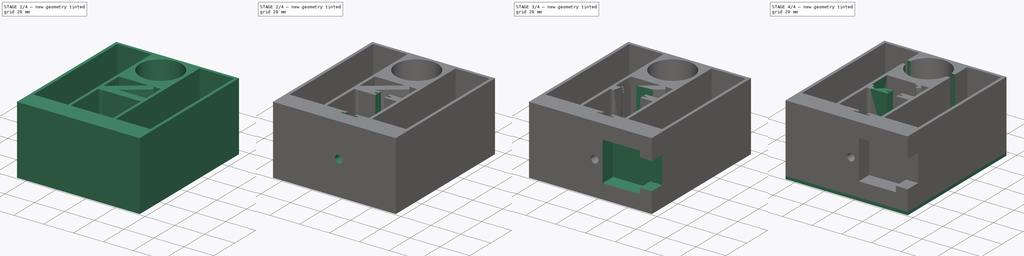
[diagram: build sequence overview — one tinted view per stage of 4, left to right]
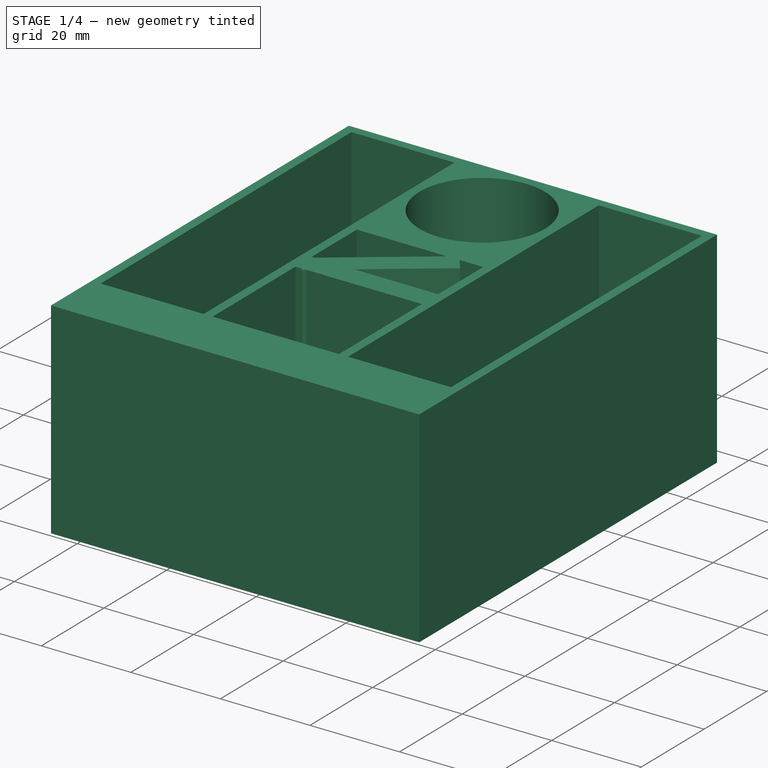
[diagram: stage 1 of 4 — iso view after this stage's code; geometry added in this stage tinted green]
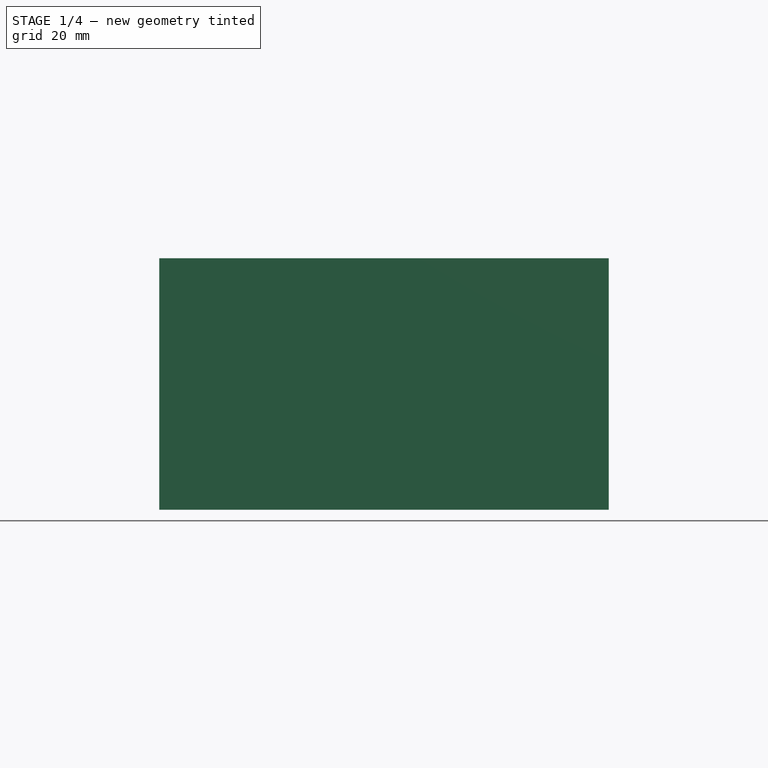
[diagram: stage 1 of 4 — front view after this stage's code; geometry added in this stage tinted green]
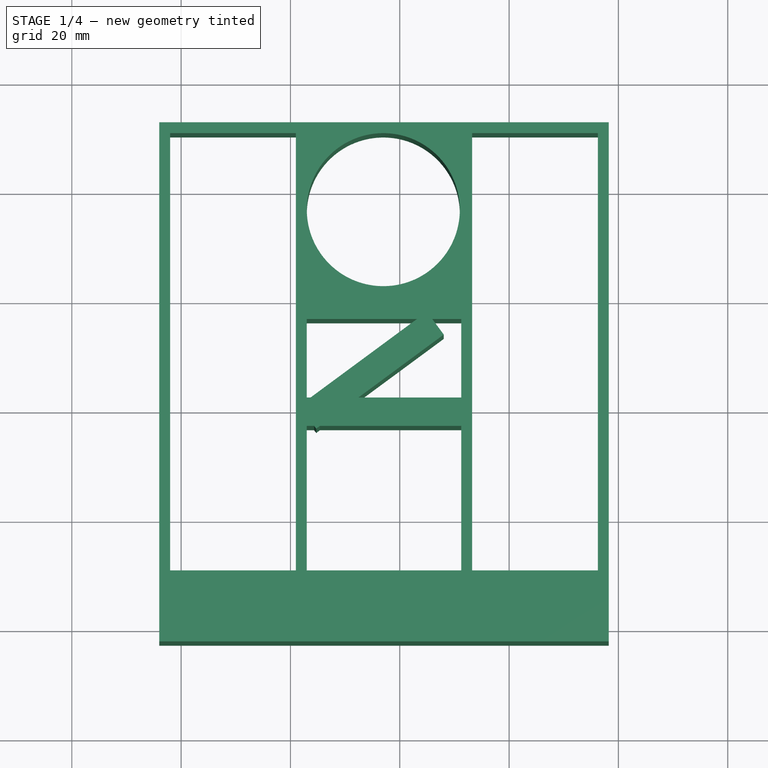
[diagram: stage 1 of 4 — top view after this stage's code; geometry added in this stage tinted green]
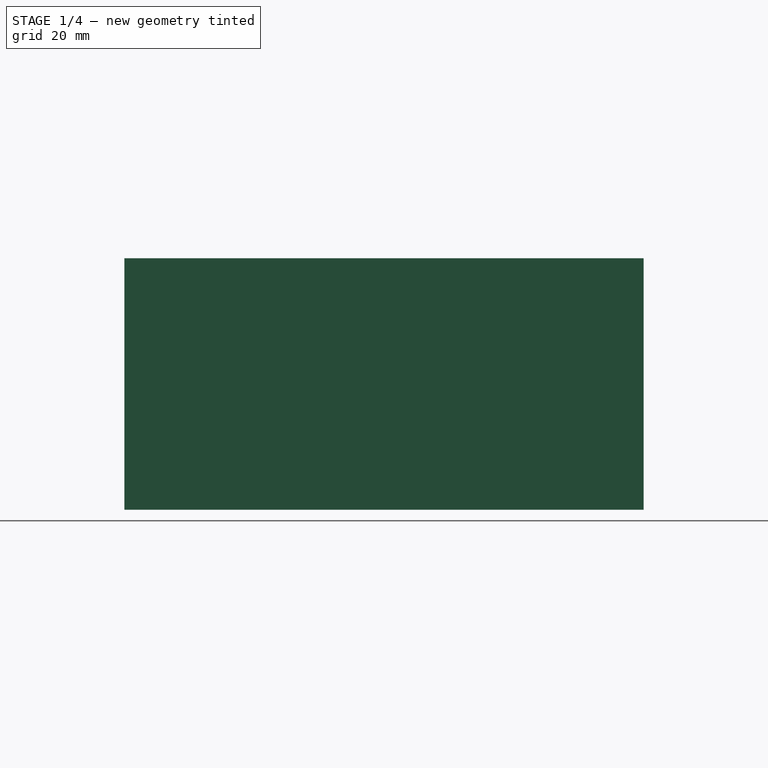
[diagram: stage 1 of 4 — right view after this stage's code; geometry added in this stage tinted green]
FCSTD DOCUMENT  (FreeCAD 0.20R29177 +233 (Git))
Label: Sensor 1
License: All rights reserved
LicenseURL: http://en.wikipedia.org/wiki/All_rights_reserved
objects: Sketcher::SketchObject×10, PartDesign::Pocket×7, PartDesign::Pad×3, Spreadsheet::Sheet×1, PartDesign::Body×1
note: 31 computed .brp shape members not serialized (recipe doc carries the construction recipe); baked Part::Feature solids carry a one-line shape summary decoded from their .brp

FEATURE [Sketcher::SketchObject] Sketch
  FullyConstrained = true
  MapMode = 5
  Support = -> [XY_Plane]
  expr: Constraints[12] = <<Sensor>>.G6
  expr: Constraints[13] = <<Sensor>>.G7
  expr: Constraints[8] = <<Sensor>>.G3
  expr: Constraints[9] = <<Sensor>>.G4
  sketch-geometry (5):
    g0: LineSegment StartX=0 StartY=0 StartZ=0 EndX=-3.62109 EndY=4.90794 EndZ=0
    g1: LineSegment StartX=-18.3763 StartY=0.483659 StartZ=0 EndX=4.95963 EndY=17.701 EndZ=0
    g2: LineSegment StartX=4.95963 StartY=17.701 StartZ=0 EndX=8.04687 EndY=13.5166 EndZ=0
    g3: LineSegment StartX=8.04687 StartY=13.5166 StartZ=0 EndX=-15.289 EndY=-3.70071 EndZ=0
    g4: LineSegment StartX=-15.289 StartY=-3.70071 StartZ=0 EndX=-18.3763 EndY=0.483659 EndZ=0
  constraints (14):
    c: Coincident(g0,g-1)
    c: Coincident(g1,g2)
    c: Coincident(g2,g3)
    c: Coincident(g3,g4)
    c: Coincident(g4,g1)
    c: Parallel(g4,g2)
    c: Parallel(g1,g3)
    c: Perpendicular(g4,g3)
    c: Distance(g3) = 29
    c: Distance(g4) = 5.2
    c: Symmetric(g3,g2,g0)
    c: Perpendicular(g0,g3)
    c: Distance(g0) = 6.09919
    c: Angle(g-2,g0) = 0.635649
FEATURE [Spreadsheet::Sheet] Sheet1  label="Sensor"
  cells = A1=Part; B1=SP1; C1=SP2; D1=SP3; E1=SP4; F1=SP5; G1=Size (mm); H1=Shape; I1=External References; N1=Design specification; P1=unit; A2=Sensor case; B2=Sensor Holder; C2=Outer; F2=Height; G2==2 * L24; I2=Part; J2=Subpart; K2=Parameter; N2=Max wavelength; O2=800; P2=nm; F3=Base; G3==L4 + O5 * 2 + O6; I3=Camera; J3=PCB; K3=Height; L3=23.7; N3=Min wavelength; O3=350; P3=nm; F4=Thickness; G4==L5 + 2 * O5 + O6; K4=Base; L4=24.8; N4=Max colimated light angle; O4=0.1; P4=deg; F5=Angle; G5==O7 + O9 / 2; K5=Thickness; L5=1; N5=wall Thickness; O5=2; P5=mm; F6=Distance to origin; G6==L13 * 0.5 * O11 / tan(1rad * Q9 / 2); J6=Sensor casing; K6=Base; L6=8.44; N6=tolerance; O6=0.2; P6=mm; C7=inner; F7=Height; G7==L9 + L24; K7=Height; L7=8.4; N7=min angle; O7==pi / 180deg * asin(O3 / $L$19) * 180 / pi; P7=deg; Q7==pi / 180deg * asin(O3 / $L$19); F8=Base; G8==L4 + $O$6; K8=Thickness; L8=3; N8=max angle; O8==pi / 180deg * asin(O2 / $L$19) * 180 / pi; P8=deg; Q8==pi / 180deg * asin(O2 / $L$19); F9=Thickness; G9==L5 + $O$6 * 1.5; K9=Vertical center rel to bottom; L9=13.42; N9=delta min max; O9==O8 - O7; P9=deg; Q9==Q8 - Q7; F10=side; G10==L16; K10=Vertical center rel to top (socket); L10==L3 - L9; N10=fraction of margin sensor as buffer; O10=0.05; B11=Slit Holder; F11=wall thickness; G11==O5 * 2 + L16 + O6; K11=side margin; L11=1.2; N11=fraction of sensor used; O11==1 - O10; F12=Base; G12==L15 + O6 + O5 * 5; J12=Sensor; K12=Height; L12=2.74; N12=N battery; O12=4; F13=Height; G13==G2; K13=Base; L13=3.76; N13=Battery per side; O13=2; F14=slit aperture; G14==L15 + O6 * 2.5; I14=Slit; J14=Structure; K14=Height; L14==L3; F15=Distance between slits; G15==L18 / tan(1rad * O4 * pi / 180); K15=Base; L15=10; B16=Connector to cell; C16=lateral socket; F16=Height; G16==L20 + O6; K16=Thickness; L16=1; F17=Base; G17==L21 + O6; K17=Vertical Apterure; L17==L12; F18=Depth; G18==L22 + O6; K18=Horizontal aperture; L18=0.06; F19=Distance from center; G19==L23 + 1; I19=Diffraction Gratting; K19=lines per mm; L19=1000; D20=opening for tube; F20=Height; G20=1.5; I20=Front Cap; J20=Socket imput; K20=Height; L20=26; F21=Base; G21=8.550000000000001; H21=(from edge to edge); K21=Base; L21=24.6; F22=Depth; G22==G18; K22=Thickness; L22=9.800000000000001; C23=optical window; F23=Diameter; G23=5; K23=Distance to center; L23=4; F24=Depth; G24=5; I24=Battery; K24=Height; L24=23; K25=Base; L25=23; K26=Thickness; L26=80
FEATURE [PartDesign::Pad] Pad
  Direction = (0,0,1)
  Length = 46
  Length2 = 10
  Profile = -> Sketch
  ReferenceAxis = -> Sketch [N_Axis]
  Type = 0
  expr: Length = <<Sensor>>.G2
FEATURE [Sketcher::SketchObject] Sketch001
  FullyConstrained = false
  MapMode = 5
  Placement = pos=(0,0,0) rot=(1,0,0;3.14159rad)
  Support = -> [Pad]
  expr: Constraints[42] = <<Sensor>>.L26
  expr: Constraints[43] = <<Sensor>>.L25
  expr: Constraints[44] = <<Sensor>>.O5
  expr: Constraints[45] = <<Sensor>>.O5
  expr: Constraints[46] = <<Sensor>>.O5
  expr: Constraints[47] = <<Sensor>>.O5
  expr: Constraints[48] = <<Sensor>>.O5
  expr: Constraints[49] = <<Sensor>>.O5
  expr: Constraints[50] = <<Sensor>>.O5
  expr: Constraints[51] = <<Sensor>>.O5
  expr: Constraints[52] = <<Sensor>>.G11
  sketch-geometry (21):
    g0: LineSegment StartX=38.2399 StartY=-52.37 StartZ=0 EndX=-44.0101 EndY=-52.37 EndZ=0
    g1: LineSegment StartX=-44.0101 StartY=-52.37 StartZ=0 EndX=-44.0101 EndY=42.63 EndZ=0
    g2: LineSegment StartX=-44.0101 StartY=42.63 StartZ=0 EndX=38.2399 EndY=42.63 EndZ=0
    g3: LineSegment StartX=38.2399 StartY=42.63 StartZ=0 EndX=38.2399 EndY=-52.37 EndZ=0
    g4: LineSegment StartX=-42.0101 StartY=-50.37 StartZ=0 EndX=-19.0101 EndY=-50.37 EndZ=0
    g5: LineSegment StartX=-19.0101 StartY=-50.37 StartZ=0 EndX=-19.0101 EndY=29.63 EndZ=0
    g6: LineSegment StartX=-19.0101 StartY=29.63 StartZ=0 EndX=-42.0101 EndY=29.63 EndZ=0
    g7: LineSegment StartX=-42.0101 StartY=29.63 StartZ=0 EndX=-42.0101 EndY=-50.37 EndZ=0
    g8: LineSegment StartX=36.2399 StartY=-50.37 StartZ=0 EndX=13.2399 EndY=-50.37 EndZ=0
    g9: LineSegment StartX=13.2399 StartY=-50.37 StartZ=0 EndX=13.2399 EndY=29.63 EndZ=0
    g10: LineSegment StartX=13.2399 StartY=29.63 StartZ=0 EndX=36.2399 EndY=29.63 EndZ=0
    g11: LineSegment StartX=36.2399 StartY=29.63 StartZ=0 EndX=36.2399 EndY=-50.37 EndZ=0
    g12: LineSegment StartX=-17.0101 StartY=-2 StartZ=0 EndX=11.2399 EndY=-2 EndZ=0
    g13: LineSegment StartX=11.2399 StartY=-2 StartZ=0 EndX=11.2399 EndY=-16.37 EndZ=0
    g14: LineSegment StartX=11.2399 StartY=-16.37 StartZ=0 EndX=-17.0101 EndY=-16.37 EndZ=0
    g15: LineSegment StartX=-17.0101 StartY=-16.37 StartZ=0 EndX=-17.0101 EndY=-2 EndZ=0
    g16: LineSegment StartX=11.2399 StartY=3.2 StartZ=0 EndX=-17.0101 EndY=3.2 EndZ=0
    g17: LineSegment StartX=-17.0101 StartY=3.2 StartZ=0 EndX=-17.0101 EndY=29.63 EndZ=0
    g18: LineSegment StartX=-17.0101 StartY=29.63 StartZ=0 EndX=11.2399 EndY=29.63 EndZ=0
    g19: LineSegment StartX=11.2399 StartY=29.63 StartZ=0 EndX=11.2399 EndY=3.2 EndZ=0
    g20: Circle CenterX=-3.01008 CenterY=-36.37 CenterZ=0 NormalX=0 NormalY=0 NormalZ=1 AngleXU=0 Radius=14
  constraints (62):
    c: Coincident(g0,g1)
    c: Coincident(g1,g2)
    c: Coincident(g2,g3)
    c: Coincident(g3,g0)
    c: Horizontal(g0)
    c: Horizontal(g2)
    c: Vertical(g1)
    c: Vertical(g3)
    c: Coincident(g4,g5)
    c: Coincident(g5,g6)
    c: Coincident(g6,g7)
    c: Coincident(g7,g4)
    c: Horizontal(g4)
    c: Horizontal(g6)
    c: Vertical(g5)
    c: Vertical(g7)
    c: Coincident(g8,g9)
    c: Coincident(g9,g10)
    c: Coincident(g10,g11)
    c: Coincident(g11,g8)
    c: Horizontal(g8)
    c: Horizontal(g10)
    c: Vertical(g9)
    c: Vertical(g11)
    c: Coincident(g12,g13)
    c: Coincident(g13,g14)
    c: Coincident(g14,g15)
    c: Coincident(g15,g12)
    c: Horizontal(g12)
    c: Horizontal(g14)
    c: Vertical(g13)
    c: Vertical(g15)
    c: Coincident(g16,g17)
    c: Coincident(g17,g18)
    c: Coincident(g18,g19)
    c: Coincident(g19,g16)
    c: Horizontal(g16)
    c: Horizontal(g18)
    c: Vertical(g17)
    c: Vertical(g19)
    c: Equal(g7,g9)
    c: Equal(g4,g8)
    c: DistanceY(g7,g7) = 80
    c: DistanceX(g4,g4) = 23
    c: DistanceX(g0,g4) = 2
    c: DistanceY(g0,g4) = 2
    c: DistanceX(g8,g0) = 2
    c: DistanceY(g0,g8) = 2
    c: DistanceX(g4,g14) = 2
    c: DistanceX(g13,g8) = 2
    c: DistanceX(g5,g17) = 2
    c: DistanceX(g18,g9) = 2
    c: DistanceY(g12,g16) = 5.2
    c: Diameter(g20) = 28
    c: DistanceX(g14,g14) = 28.25
    c: DistanceY(g15,g15) = 14.37
    c: DistanceY(g0,g20) = 16
    c: DistanceY(g20,g14) = 20
    c: DistanceX(g4,g20) = 16
    c: DistanceY(g9,g18) = 0
    c: DistanceY(g10,g2) = 13
    c: DistanceY(g12,g-1) = 2
FEATURE [PartDesign::Pad] Pad001
  BaseFeature = -> Pad
  Direction = (0,0,-1)
  Length = 46
  Length2 = 10
  Profile = -> Sketch001
  ReferenceAxis = -> Sketch001 [N_Axis]
  Reversed = true
  Type = 0
  expr: Length = <<Sensor>>.G2
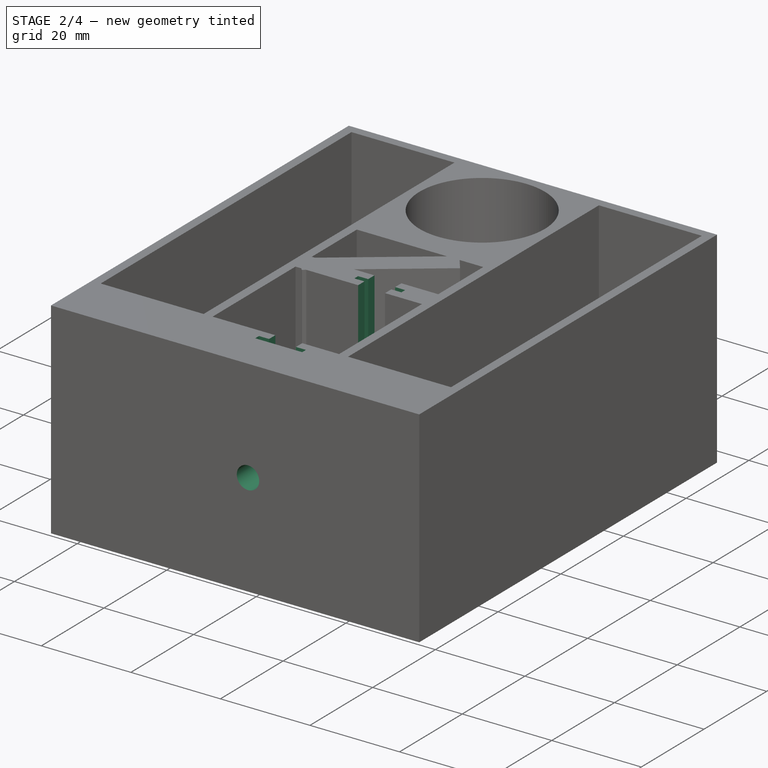
[diagram: stage 2 of 4 — iso view after this stage's code; geometry added in this stage tinted green]
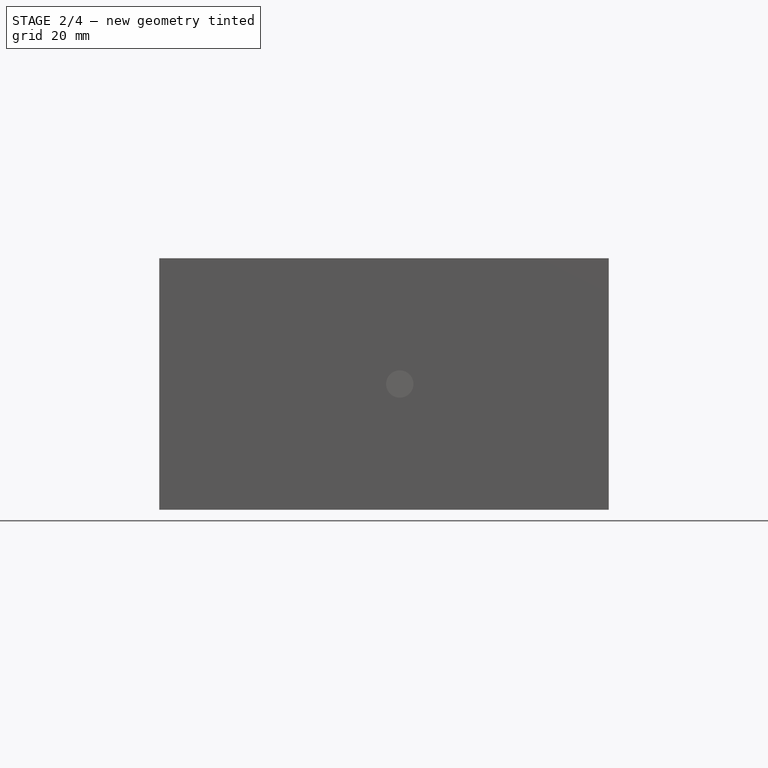
[diagram: stage 2 of 4 — front view after this stage's code; geometry added in this stage tinted green]
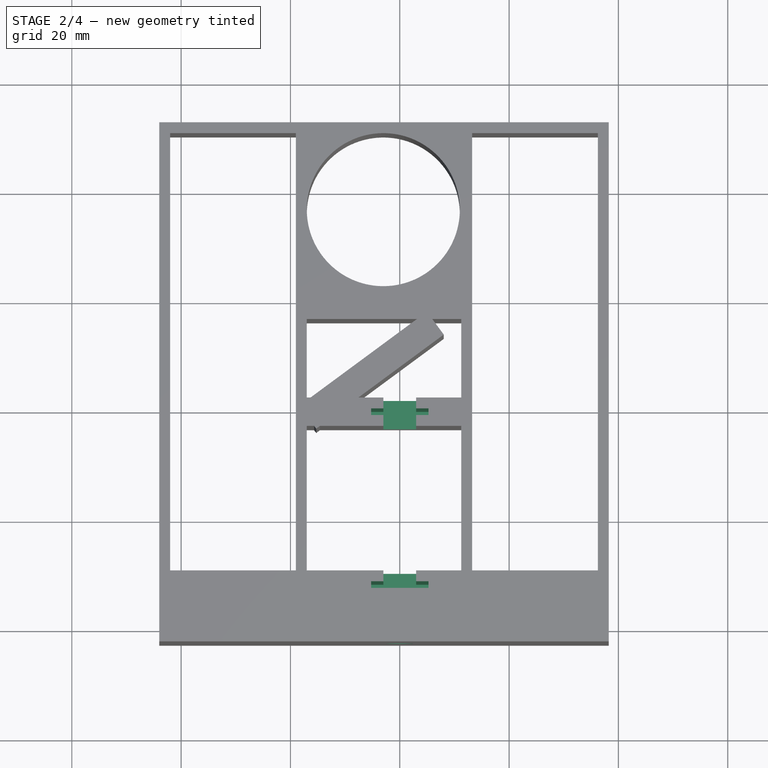
[diagram: stage 2 of 4 — top view after this stage's code; geometry added in this stage tinted green]
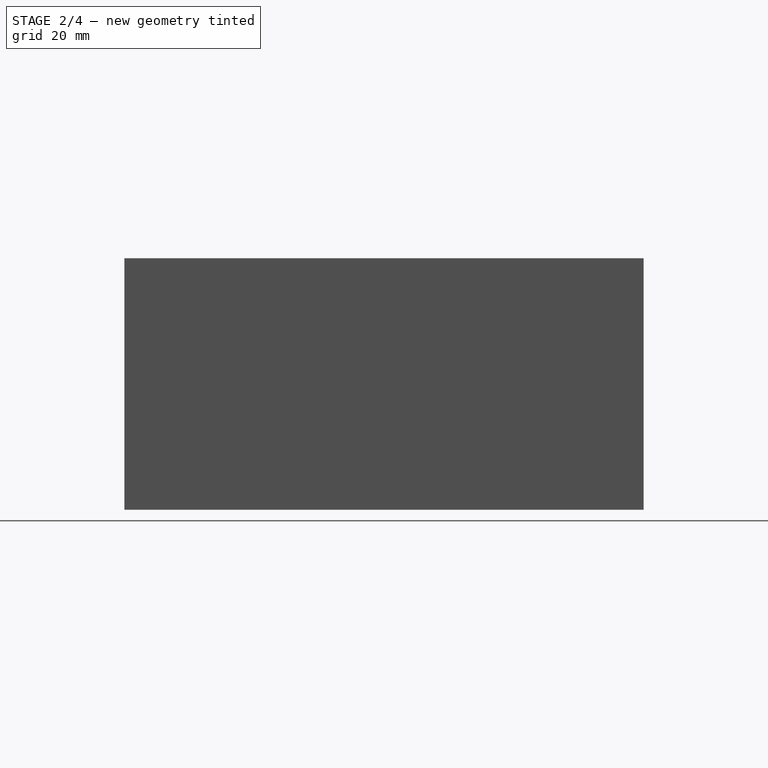
[diagram: stage 2 of 4 — right view after this stage's code; geometry added in this stage tinted green]
FEATURE [Sketcher::SketchObject] Sketch003
  ExternalGeometry = -> [Pad001]
  FullyConstrained = false
  MapMode = 5
  Placement = pos=(0,0,46) rot=(0,0,1;0rad)
  expr: Constraints[7] = +<<Sensor>>.L15 - <<Sensor>>.O5 * 2
  expr: Constraints[8] = <<Sensor>>.L16 + <<Sensor>>.O5 + <<Sensor>>.O6
  sketch-geometry (4):
    g0: LineSegment StartX=-3 StartY=2.32432 StartZ=0 EndX=3 EndY=2.32432 EndZ=0
    g1: LineSegment StartX=3 StartY=2.32432 StartZ=0 EndX=3 EndY=-32.83 EndZ=0
    g2: LineSegment StartX=3 StartY=-32.83 StartZ=0 EndX=-3 EndY=-32.83 EndZ=0
    g3: LineSegment StartX=-3 StartY=-32.83 StartZ=0 EndX=-3 EndY=2.32432 EndZ=0
  constraints (10):
    c: Coincident(g0,g1)
    c: Coincident(g1,g2)
    c: Coincident(g2,g3)
    c: Coincident(g3,g0)
    c: Horizontal(g2)
    c: Vertical(g1)
    c: Vertical(g3)
    c: DistanceX(g2,g2) = 6
    c: DistanceY(g1,g-3) = 3.2
    c: Symmetric(g0,g0,g-2)
FEATURE [PartDesign::Pocket] Pocket
  BaseFeature = -> Pad001
  Direction = (0,0,-1)
  Length = 36.42
  Length2 = 5
  Profile = -> Sketch003
  ReferenceAxis = -> Sketch003 [N_Axis]
  Type = 0
  expr: Length = <<Sensor>>.G7
FEATURE [Sketcher::SketchObject] Sketch004
  ExternalGeometry = -> [Pocket]
  FullyConstrained = true
  MapMode = 5
  Placement = pos=(0,0,46) rot=(0,0,1;0rad)
  Support = -> [Pocket]
  expr: Constraints[20] = <<Sensor>>.L16 + <<Sensor>>.O6
  expr: Constraints[21] = <<Sensor>>.G14
  sketch-geometry (8):
    g0: LineSegment StartX=-5.25 StartY=-31.63 StartZ=0 EndX=5.25 EndY=-31.63 EndZ=0
    g1: LineSegment StartX=5.25 StartY=-31.63 StartZ=0 EndX=5.25 EndY=-32.83 EndZ=0
    g2: LineSegment StartX=5.25 StartY=-32.83 StartZ=0 EndX=-5.25 EndY=-32.83 EndZ=0
    g3: LineSegment StartX=-5.25 StartY=-32.83 StartZ=0 EndX=-5.25 EndY=-31.63 EndZ=0
    g4: LineSegment StartX=-5.25 StartY=0 StartZ=0 EndX=5.25 EndY=0 EndZ=0
    g5: LineSegment StartX=5.25 StartY=0 StartZ=0 EndX=5.25 EndY=-1.2 EndZ=0
    g6: LineSegment StartX=5.25 StartY=-1.2 StartZ=0 EndX=-5.25 EndY=-1.2 EndZ=0
    g7: LineSegment StartX=-5.25 StartY=-1.2 StartZ=0 EndX=-5.25 EndY=0 EndZ=0
  constraints (22):
    c: Coincident(g0,g1)
    c: Coincident(g1,g2)
    c: Coincident(g2,g3)
    c: Coincident(g3,g0)
    c: Horizontal(g0)
    c: Vertical(g1)
    c: Vertical(g3)
    c: Coincident(g4,g5)
    c: Coincident(g5,g6)
    c: Coincident(g6,g7)
    c: Coincident(g7,g4)
    c: Horizontal(g4)
    c: Vertical(g5)
    c: Vertical(g7)
    c: PointOnObject(g4,g-1)
    c: Symmetric(g6,g5,g-2)
    c: Symmetric(g2,g1,g-2)
    c: Equal(g3,g7)
    c: Equal(g6,g0)
    c: DistanceY(g1,g-3) = 0
    c: DistanceY(g1,g1) = 1.2
    c: DistanceX(g2,g2) = 10.5
FEATURE [PartDesign::Pocket] Pocket001
  BaseFeature = -> Pocket
  Direction = (0,0,-1)
  Length = 36.42
  Length2 = 5
  Profile = -> Sketch004
  ReferenceAxis = -> Sketch004 [N_Axis]
  Type = 0
  expr: Length = <<Sensor>>.G7
FEATURE [Sketcher::SketchObject] Sketch005
  FullyConstrained = true
  MapMode = 5
  Placement = pos=(0,-42.63,0) rot=(1,0,0;1.5708rad)
  Support = -> [Pocket001]
  expr: Constraints[1] = <<Sensor>>.G23
  expr: Constraints[2] = <<Sensor>>.L25
  sketch-geometry (1):
    g0: Circle CenterX=0 CenterY=23 CenterZ=0 NormalX=0 NormalY=0 NormalZ=1 AngleXU=0 Radius=2.5
  constraints (3):
    c: PointOnObject(g0,g-2)
    c: Diameter(g0) = 5
    c: DistanceY(g-1,g0) = 23
FEATURE [PartDesign::Pocket] Pocket002
  BaseFeature = -> Pocket001
  Direction = (0,1,-2e-16)
  Length = 10
  Length2 = 5
  Profile = -> Sketch005
  ReferenceAxis = -> Sketch005 [N_Axis]
  Type = 0
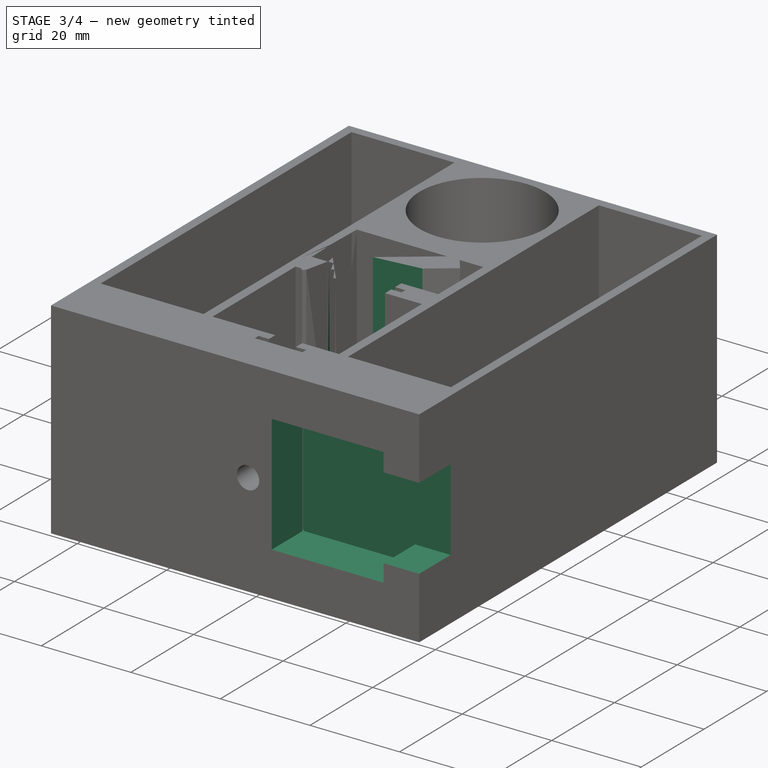
[diagram: stage 3 of 4 — iso view after this stage's code; geometry added in this stage tinted green]
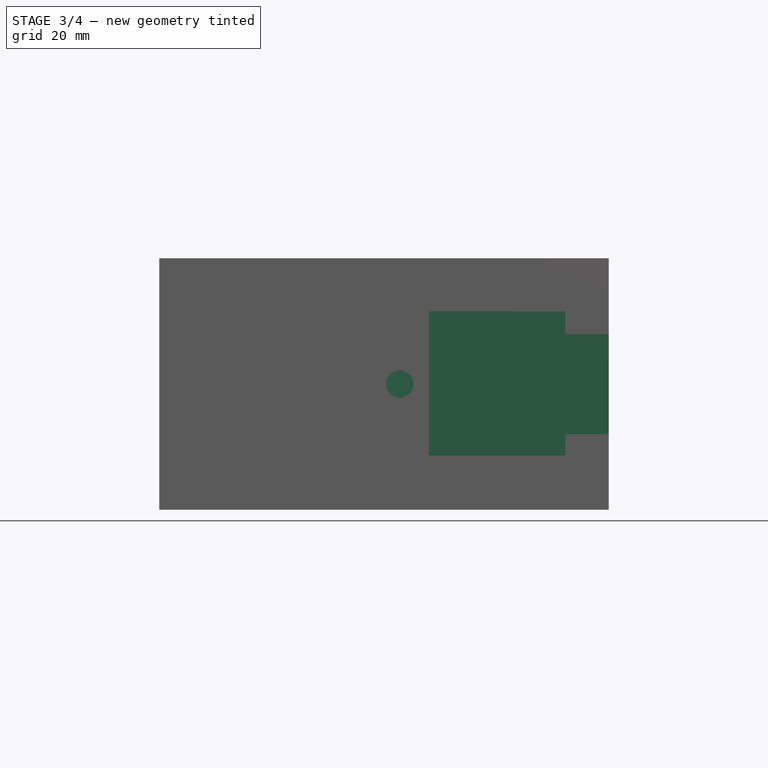
[diagram: stage 3 of 4 — front view after this stage's code; geometry added in this stage tinted green]
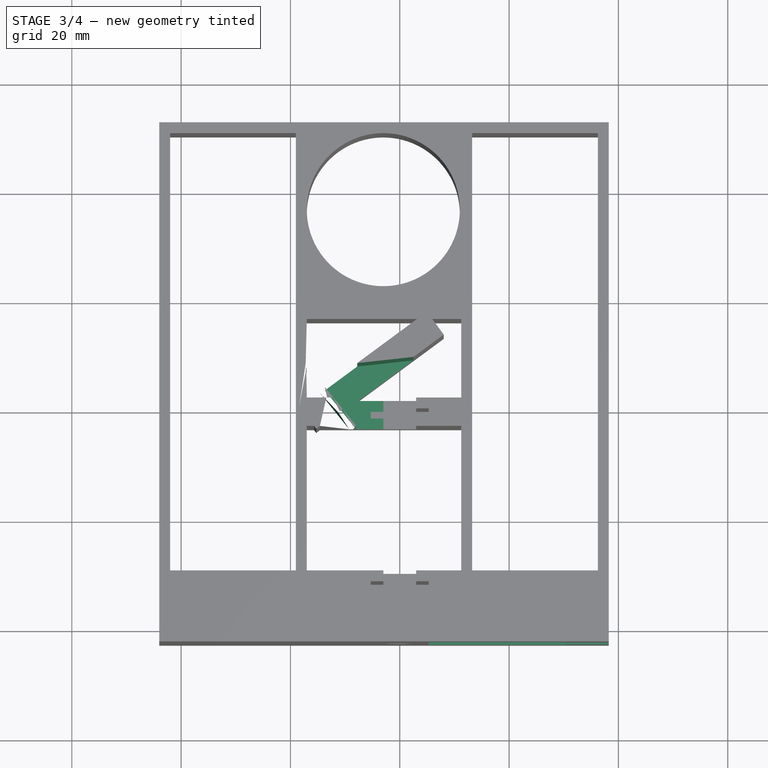
[diagram: stage 3 of 4 — top view after this stage's code; geometry added in this stage tinted green]
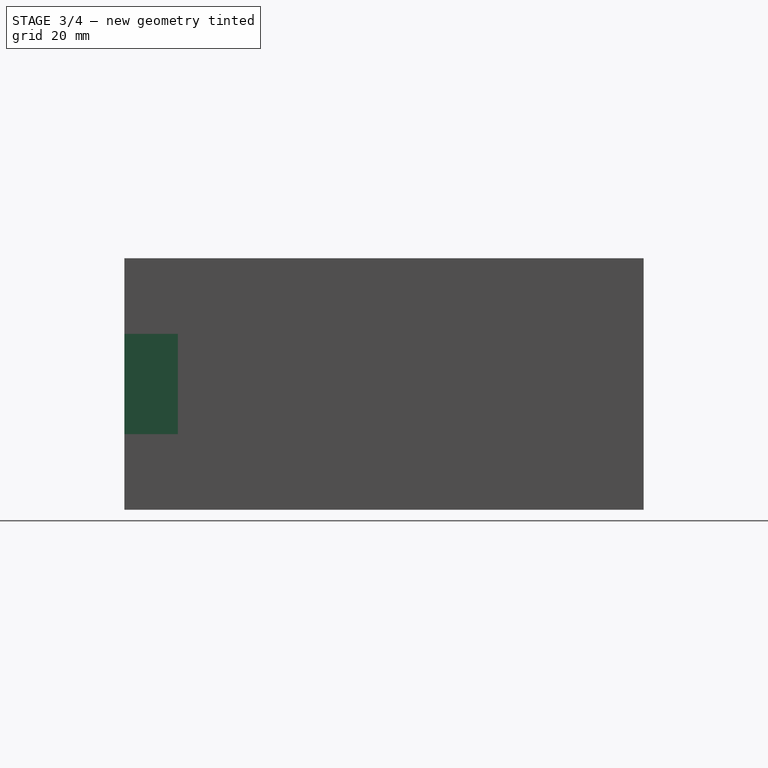
[diagram: stage 3 of 4 — right view after this stage's code; geometry added in this stage tinted green]
FEATURE [Sketcher::SketchObject] Sketch006
  ExternalGeometry = -> [Pocket002]
  FullyConstrained = true
  MapMode = 5
  Placement = pos=(0,-42.63,0) rot=(1,0,0;1.5708rad)
  Support = -> [Pocket002]
  expr: Constraints[10] = 30 - <<Sensor>>.L21 - <<Sensor>>.O6 / 2
  expr: Constraints[11] = <<Sensor>>.G16 / 2
  expr: Constraints[8] = <<Sensor>>.G16 + <<Sensor>>.O6
  expr: Constraints[9] = <<Sensor>>.G17 + <<Sensor>>.O6
  sketch-geometry (4):
    g0: LineSegment StartX=5.3 StartY=36.3 StartZ=0 EndX=30.3 EndY=36.3 EndZ=0
    g1: LineSegment StartX=30.3 StartY=36.3 StartZ=0 EndX=30.3 EndY=9.9 EndZ=0
    g2: LineSegment StartX=30.3 StartY=9.9 StartZ=0 EndX=5.3 EndY=9.9 EndZ=0
    g3: LineSegment StartX=5.3 StartY=9.9 StartZ=0 EndX=5.3 EndY=36.3 EndZ=0
  constraints (12):
    c: Coincident(g0,g1)
    c: Coincident(g1,g2)
    c: Coincident(g2,g3)
    c: Coincident(g3,g0)
    c: Horizontal(g0)
    c: Horizontal(g2)
    c: Vertical(g1)
    c: Vertical(g3)
    c: DistanceY(g3,g3) = 26.4
    c: DistanceX(g2,g2) = 25
    c: DistanceX(g-3,g2) = 5.3
    c: DistanceY(g2,g-3) = 13.1
FEATURE [PartDesign::Pocket] Pocket003
  BaseFeature = -> Pocket002
  Direction = (0,1,-2e-16)
  Length = 10
  Length2 = 5
  Profile = -> Sketch006
  ReferenceAxis = -> Sketch006 [N_Axis]
  Type = 0
  expr: Length = <<Sensor>>.G18
FEATURE [Sketcher::SketchObject] Sketch007
  ExternalGeometry = -> [Pocket003]
  FullyConstrained = false
  MapMode = 5
  Placement = pos=(0,-42.63,0) rot=(1,0,0;1.5708rad)
  Support = -> [Pocket003]
  sketch-geometry (5):
    g0: LineSegment StartX=0 StartY=23 StartZ=0 EndX=38.2399 EndY=23 EndZ=0
    g1: LineSegment StartX=30.3 StartY=32.1739 StartZ=0 EndX=38.2399 EndY=32.1739 EndZ=0
    g2: LineSegment StartX=38.2399 StartY=32.1739 StartZ=0 EndX=38.2399 EndY=13.8261 EndZ=0
    g3: LineSegment StartX=38.2399 StartY=13.8261 StartZ=0 EndX=30.3 EndY=13.8261 EndZ=0
    g4: LineSegment StartX=30.3 StartY=13.8261 StartZ=0 EndX=30.3 EndY=32.1739 EndZ=0
  constraints (13):
    c: Coincident(g0,g-3)
    c: PointOnObject(g0,g-4)
    c: Horizontal(g0)
    c: Coincident(g1,g2)
    c: Coincident(g2,g3)
    c: Coincident(g3,g4)
    c: Coincident(g4,g1)
    c: Horizontal(g1)
    c: Horizontal(g3)
    c: Vertical(g2)
    c: Vertical(g4)
    c: PointOnObject(g1,g-5)
    c: Symmetric(g2,g1,g0)
FEATURE [PartDesign::Pocket] Pocket004
  BaseFeature = -> Pocket003
  Direction = (0,1,-2e-16)
  Length = 10
  Length2 = 5
  Profile = -> Sketch007
  ReferenceAxis = -> Sketch007 [N_Axis]
  Type = 0
  expr: Length = <<Sensor>>.G18
FEATURE [Sketcher::SketchObject] Sketch008
  ExternalGeometry = -> [Pocket004]
  FullyConstrained = false
  MapMode = 5
  Placement = pos=(0,0,46) rot=(0,0,1;0rad)
  Support = -> [Pocket004]
  expr: Constraints[32] = <<Sensor>>.G10
  expr: Constraints[33] = <<Sensor>>.G9
  expr: Constraints[34] = <<Sensor>>.G8 + <<Sensor>>.O6
  sketch-geometry (13):
    g0: LineSegment StartX=-14.5098 StartY=3.33638 StartZ=0 EndX=-1.24871 EndY=-11.259 EndZ=0
    g1: LineSegment StartX=-1.24871 StartY=-11.259 StartZ=0 EndX=-0.26474 EndY=-11.4373 EndZ=0
    g2: LineSegment StartX=-0.26474 StartY=-11.4373 StartZ=0 EndX=-0.0328986 EndY=-10.1582 EndZ=0
    g3: LineSegment StartX=-0.0328986 StartY=-10.1582 StartZ=0 EndX=-1.01687 EndY=-9.97985 EndZ=0
    g4: LineSegment StartX=-1.01687 StartY=-9.97985 StartZ=0 EndX=2.5 EndY=9.42409 EndZ=0
    g5: LineSegment StartX=2.5 StartY=9.42409 StartZ=0 EndX=2.5 EndY=9.42409 EndZ=0
    g6: LineSegment StartX=2.5 StartY=9.42409 StartZ=0 EndX=-17.1036 EndY=7.28446 EndZ=0
    g7: LineSegment StartX=-17.1036 StartY=7.28446 StartZ=0 EndX=-17.2121 EndY=8.27855 EndZ=0
    g8: LineSegment StartX=-17.2121 StartY=8.27855 StartZ=0 EndX=-1.3491 EndY=-11.3836 EndZ=0
    g9: LineSegment StartX=-1.3491 StartY=-11.3836 StartZ=0 EndX=-2.12739 EndY=-12.0115 EndZ=0
    g10: LineSegment StartX=-2.12739 StartY=-12.0115 StartZ=0 EndX=-14.5098 EndY=3.33638 EndZ=0
    g11: LineSegment StartX=-14.5098 StartY=3.33638 StartZ=0 EndX=-14.5098 EndY=3.33638 EndZ=0
    g12: LineSegment StartX=0 StartY=0 StartZ=0 EndX=2.5 EndY=9.42409 EndZ=0
  constraints (38):
    c: PointOnObject(g0,g-6)
    c: Coincident(g0,g1)
    c: Coincident(g1,g2)
    c: Coincident(g2,g3)
    c: Coincident(g3,g4)
    c: PointOnObject(g4,g-5)
    c: Coincident(g4,g5)
    c: PointOnObject(g5,g-4)
    c: Coincident(g5,g6)
    c: Coincident(g6,g7)
    c: Coincident(g7,g8)
    c: Coincident(g8,g9)
    c: Coincident(g9,g10)
    c: PointOnObject(g10,g-3)
    c: Coincident(g10,g11)
    c: Coincident(g11,g0)
    c: Equal(g11,g5)
    c: Equal(g0,g10)
    c: Equal(g10,g6)
    c: Equal(g6,g4)
    c: Equal(g1,g3)
    c: Equal(g3,g7)
    c: Equal(g7,g9)
    c: Perpendicular(g1,g2)
    c: Perpendicular(g11,g0)
    c: Perpendicular(g4,g3)
    c: Perpendicular(g3,g2)
    c: Perpendicular(g7,g6)
    c: Perpendicular(g9,g8)
    c: Perpendicular(g6,g5)
    c: Perpendicular(g9,g10)
    c: Perpendicular(g10,g11)
    c: Distance(g3) = 1
    c: Distance(g2) = 1.3
    c: Distance(g7,g2) = 25.2
    c: Symmetric(g4,g5,g12)
    c: Perpendicular(g12,g5)
    c: Coincident(g-1,g12)
FEATURE [PartDesign::Pocket] Pocket005
  BaseFeature = -> Pocket004
  Direction = (0,0,-1)
  Length = 36.42
  Length2 = 5
  Profile = -> Sketch008
  ReferenceAxis = -> Sketch008 [N_Axis]
  Type = 0
  expr: Length = <<Sensor>>.G7
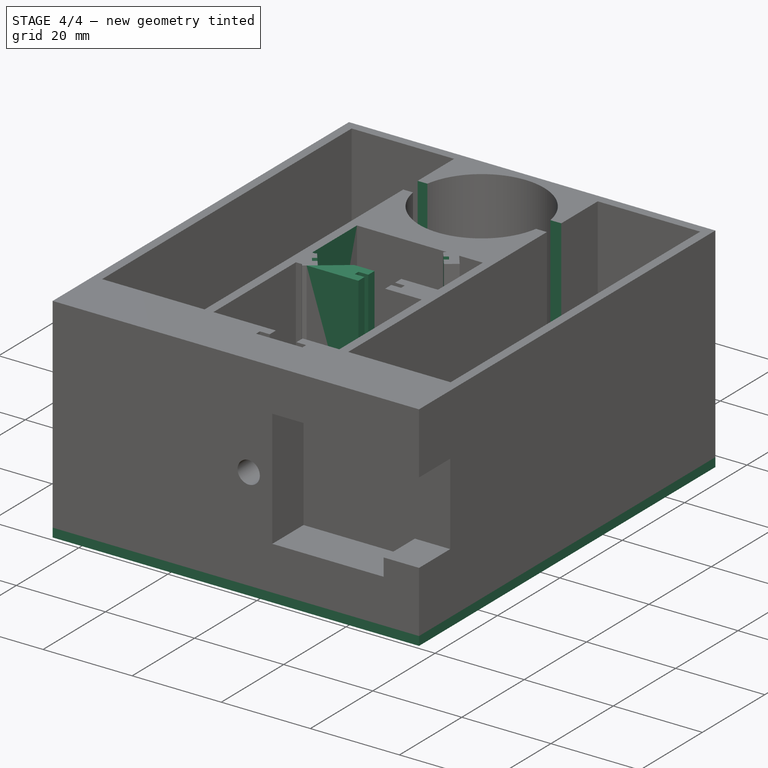
[diagram: stage 4 of 4 — iso view after this stage's code; geometry added in this stage tinted green]
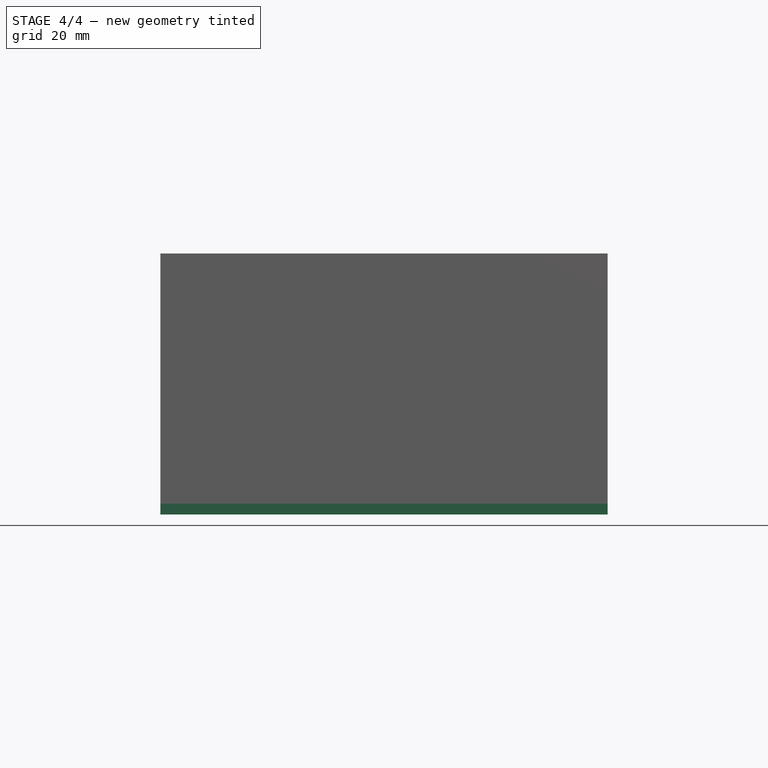
[diagram: stage 4 of 4 — front view after this stage's code; geometry added in this stage tinted green]
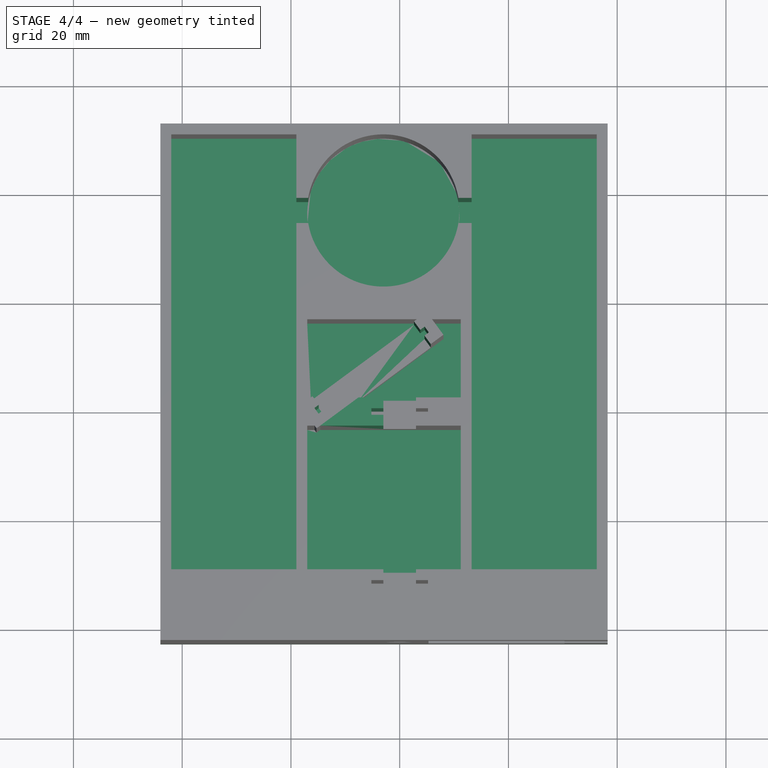
[diagram: stage 4 of 4 — top view after this stage's code; geometry added in this stage tinted green]
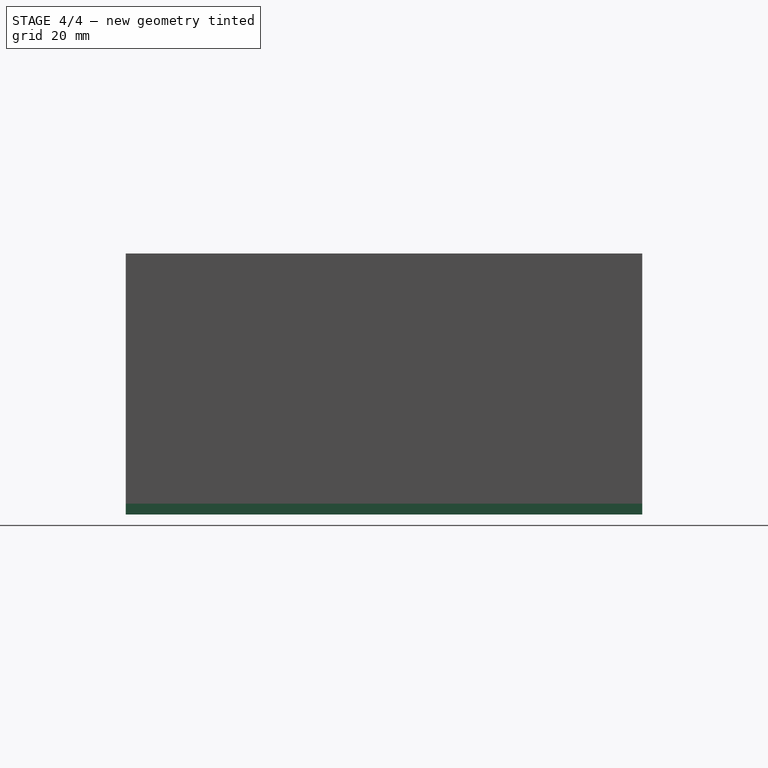
[diagram: stage 4 of 4 — right view after this stage's code; geometry added in this stage tinted green]
FEATURE [Sketcher::SketchObject] Sketch009
  ExternalGeometry = -> [Pocket005]
  FullyConstrained = true
  MapMode = 5
  Placement = pos=(0,0,0) rot=(1,0,0;3.14159rad)
  Support = -> [Pocket005]
  sketch-geometry (4):
    g0: LineSegment StartX=-44.0101 StartY=42.63 StartZ=0 EndX=38.2399 EndY=42.63 EndZ=0
    g1: LineSegment StartX=38.2399 StartY=42.63 StartZ=0 EndX=38.2399 EndY=-52.37 EndZ=0
    g2: LineSegment StartX=38.2399 StartY=-52.37 StartZ=0 EndX=-44.0101 EndY=-52.37 EndZ=0
    g3: LineSegment StartX=-44.0101 StartY=-52.37 StartZ=0 EndX=-44.0101 EndY=42.63 EndZ=0
  constraints (10):
    c: Coincident(g0,g1)
    c: Coincident(g1,g2)
    c: Coincident(g2,g3)
    c: Coincident(g3,g0)
    c: Horizontal(g0)
    c: Horizontal(g2)
    c: Vertical(g1)
    c: Vertical(g3)
    c: Coincident(g0,g-3)
    c: Coincident(g1,g-4)
FEATURE [PartDesign::Pad] Pad002
  BaseFeature = -> Pocket005
  Direction = (0,0,-1)
  Length = 2
  Length2 = 10
  Profile = -> Sketch009
  ReferenceAxis = -> Sketch009 [N_Axis]
  Type = 0
  expr: Length = <<Sensor>>.O5
FEATURE [Sketcher::SketchObject] Sketch011
  ExternalGeometry = -> [Pad002]
  FullyConstrained = false
  MapMode = 5
  Placement = pos=(0,0,46) rot=(0,0,1;0rad)
  Support = -> [Pad002]
  sketch-geometry (4):
    g0: LineSegment StartX=-21.0483 StartY=38.6785 StartZ=0 EndX=15.0282 EndY=38.6785 EndZ=0
    g1: LineSegment StartX=15.0282 StartY=38.6785 StartZ=0 EndX=15.0282 EndY=34.0615 EndZ=0
    g2: LineSegment StartX=15.0282 StartY=34.0615 StartZ=0 EndX=-21.0483 EndY=34.0615 EndZ=0
    g3: LineSegment StartX=-21.0483 StartY=34.0615 StartZ=0 EndX=-21.0483 EndY=38.6785 EndZ=0
  constraints (9):
    c: Coincident(g0,g1)
    c: Coincident(g1,g2)
    c: Coincident(g2,g3)
    c: Coincident(g3,g0)
    c: Horizontal(g0)
    c: Horizontal(g2)
    c: Vertical(g1)
    c: Vertical(g3)
    c: Symmetric(g0,g1,g-3)
FEATURE [PartDesign::Pocket] Pocket006
  BaseFeature = -> Pad002
  Direction = (0,0,-1)
  Length = 44
  Length2 = 5
  Profile = -> Sketch011
  ReferenceAxis = -> Sketch011 [N_Axis]
  Type = 0
FEATURE [PartDesign::Body] Body
  Group = -> [Sketch,Pad,Sketch001,Pad001,Sketch003,Pocket,Sketch004,Pocket001,Sketch005,Pocket002,Sketch006,Pocket003,Sketch007,Pocket004,Sketch008,Pocket005,Sketch009,Pad002,Sketch011,Pocket006]
  Origin = -> Origin
  Tip = -> Pocket006
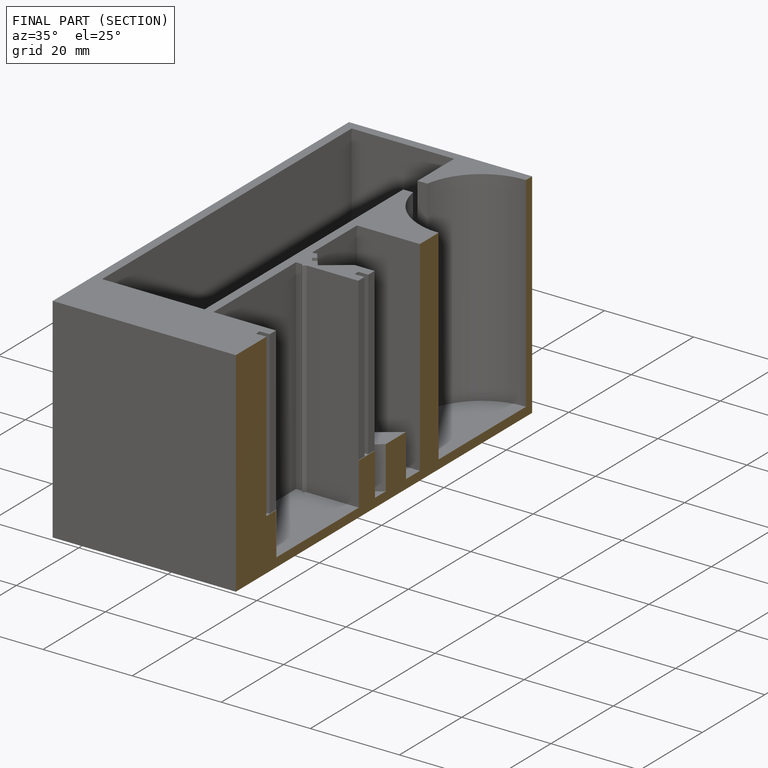
[diagram: finished part — half-section view (interior)]
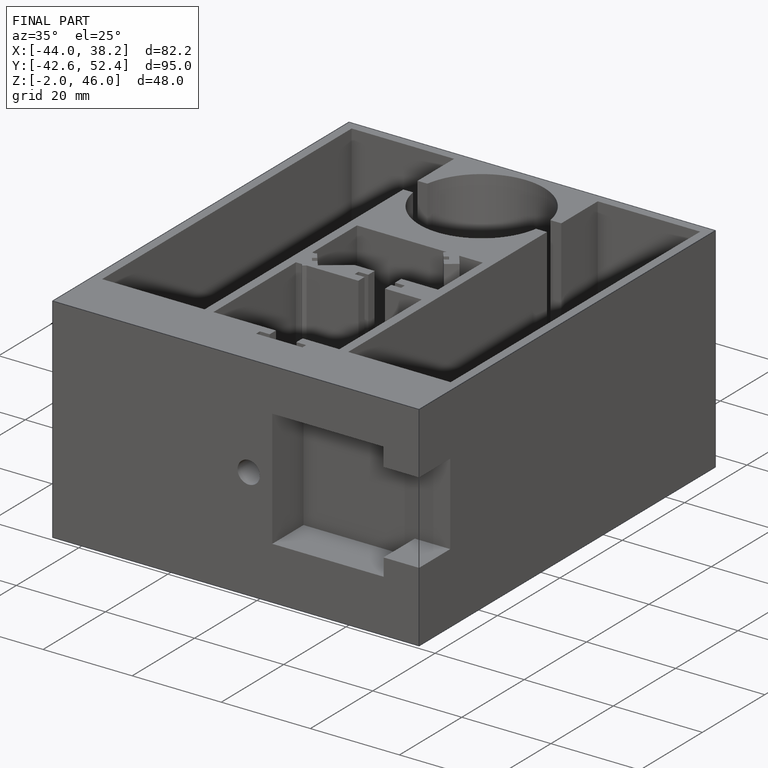
[diagram: finished part — iso view with bounding-box wireframe]
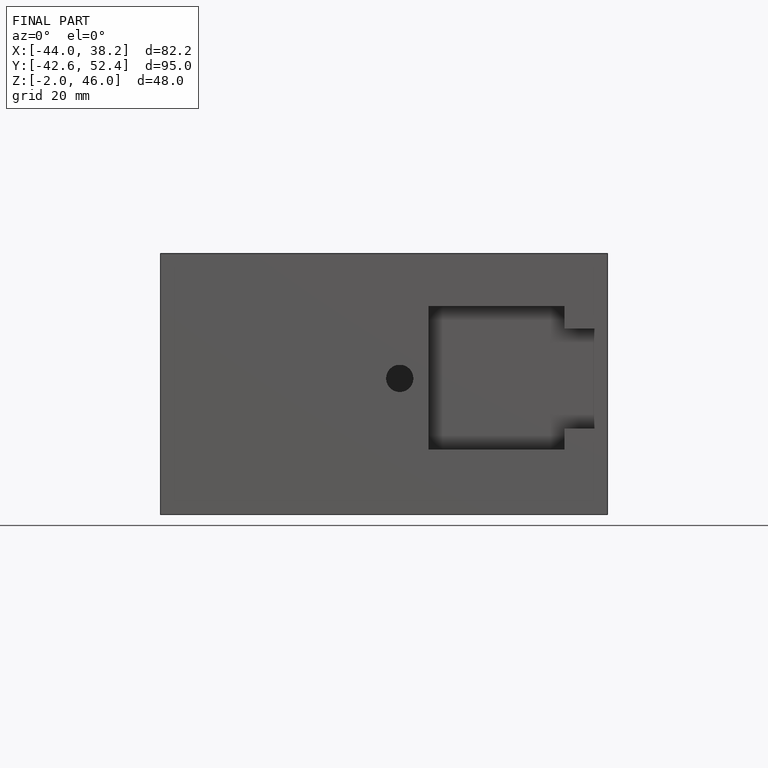
[diagram: finished part — front view with bounding-box wireframe]
